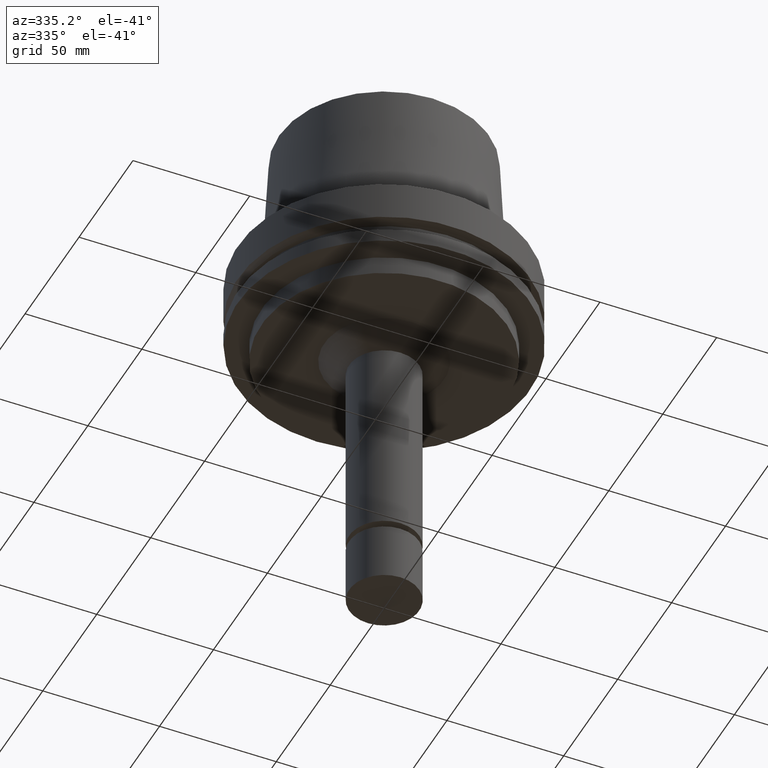
[diagram: clean part render]
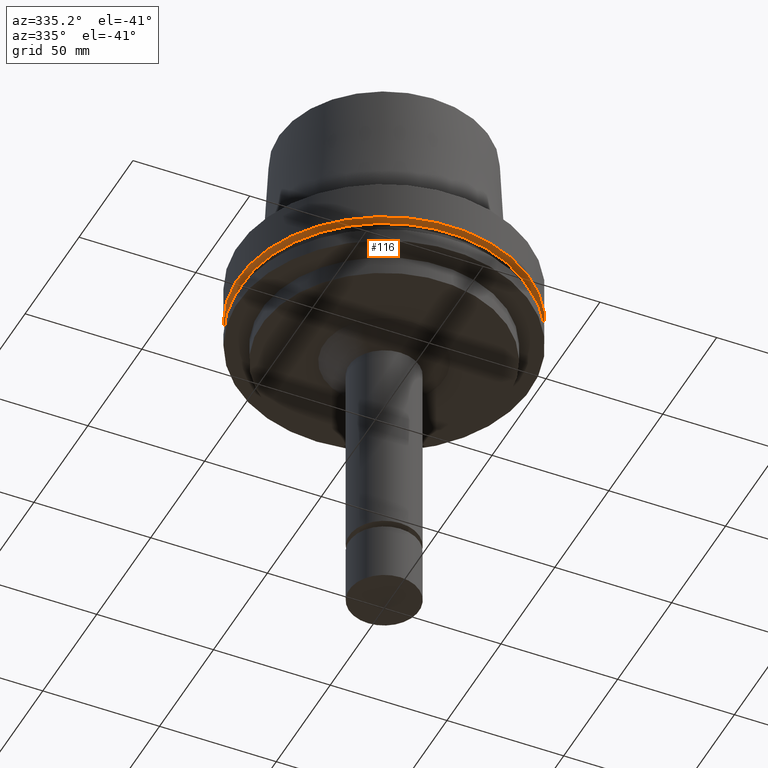
[diagram: same view with one face highlighted and labeled with its STEP entity id]
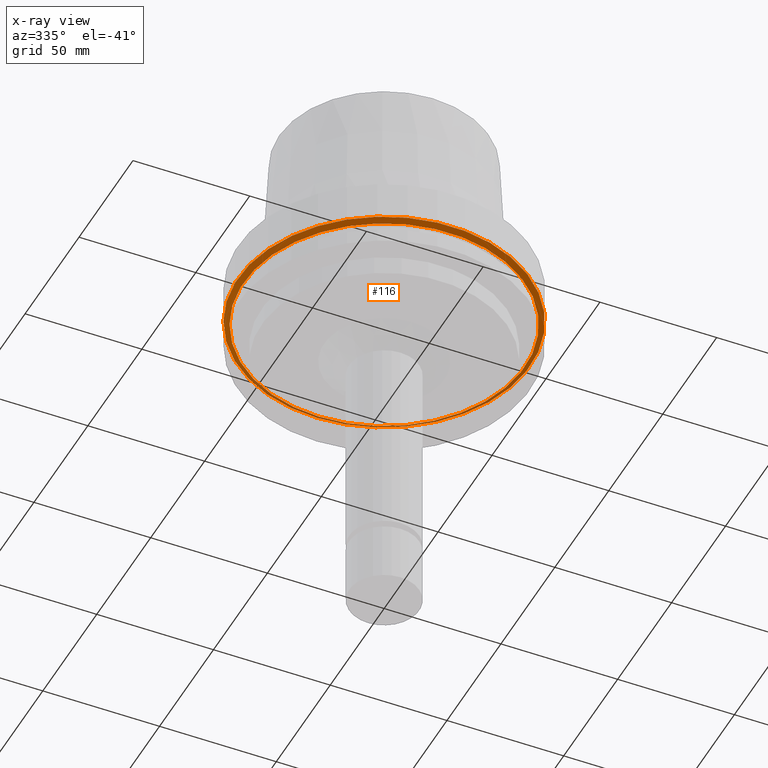
[diagram: x-ray of the same camera — body ghosted, the highlighted face saturated]
A machine part, auxiliary view. The second image highlights one B-rep face of the part: STEP entity #116.
The next image is the same camera in x-ray: the body ghosted, the highlighted face saturated — about 14% of this face is hidden behind the body in this view.
In plain terms, the highlighted conical surface has half-angle 60 deg.
Its self-contained STEP definition (entity closure, byte-faithful):
#108=EDGE_CURVE('Unnamed[1]',#262,#262,#263,.T.);
#116=ADVANCED_FACE('Unnamed[1]',(#273,#274),#275,.T.);
#185=EDGE_CURVE('Unnamed[1]',#381,#381,#382,.T.);
#262=VERTEX_POINT('',#471);
#263=CIRCLE('',#472,60.1225952641912);
#273=FACE_BOUND('',#485,.T.);
#274=FACE_BOUND('',#486,.T.);
#275=CONICAL_SURFACE('',#487,61.3112976320956,1.04719755119668);
#381=VERTEX_POINT('',#620);
#382=CIRCLE('',#621,62.5);
#471=CARTESIAN_POINT('',(1.10983616172729E-015,60.1225952641912,-18.1250000000001));
#472=AXIS2_PLACEMENT_3D('',#699,#700,#701);
#485=EDGE_LOOP('',(#711));
#486=EDGE_LOOP('',(#712));
#487=AXIS2_PLACEMENT_3D('',#713,#714,#715);
#620=CARTESIAN_POINT('',(1.02578894188644E-015,62.5,-16.7524047358084));
#621=AXIS2_PLACEMENT_3D('',#830,#831,#832);
#699=CARTESIAN_POINT('',(1.10983616172729E-015,-8.27061785511676E-015,-18.125));
#700=DIRECTION('',(6.12323399573677E-017,-7.06999605799523E-016,-1.0));
#701=DIRECTION('',(3.84640874812562E-032,1.0,-7.06999605799523E-016));
#711=ORIENTED_EDGE('',*,*,#108,.F.);
#712=ORIENTED_EDGE('',*,*,#185,.T.);
#713=CARTESIAN_POINT('',(1.06781255180686E-015,-7.78540569976382E-015,-17.4387023679042));
#714=DIRECTION('',(-6.12323399573677E-017,7.06999605799351E-016,1.0));
#715=DIRECTION('',(3.84640874812712E-032,1.0,-7.06999605799351E-016));
#830=CARTESIAN_POINT('',(1.02578894188643E-015,-7.3001935444109E-015,-16.7524047358083));
#831=DIRECTION('',(6.12323399573677E-017,-7.06999605799599E-016,-1.0));
#832=DIRECTION('',(3.84640874812857E-032,1.0,-7.06999605799599E-016));